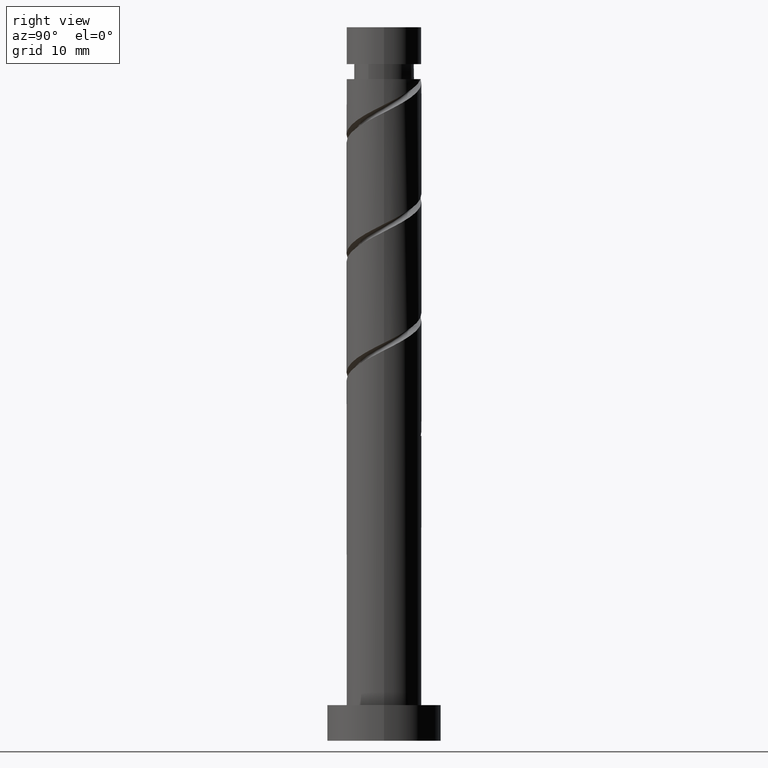
[diagram: clean part render]
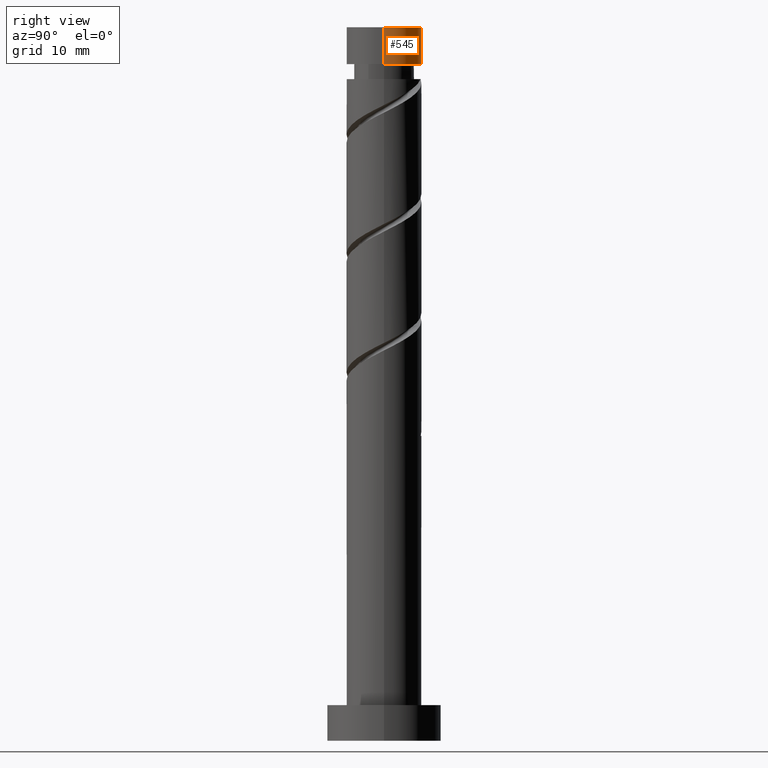
[diagram: same view with one face highlighted and labeled with its STEP entity id]
A machine part, right view. The second image highlights one B-rep face of the part: STEP entity #545.
In plain terms, the highlighted cylindrical surface (partial cylindrical patch) has radius 5.25 mm, axis along (-0, -0, -1).
Its self-contained STEP definition (entity closure, byte-faithful):
#2 = AXIS2_PLACEMENT_3D ( 'NONE', #1443, #1118, #293 ) ;
#56 = DIRECTION ( 'NONE',  ( -0.000000000000000000, -0.000000000000000000, -1.000000000000000000 ) ) ;
#78 = CYLINDRICAL_SURFACE ( 'NONE', #2, 5.250000000000000000 ) ;
#94 = EDGE_CURVE ( 'NONE', #398, #102, #1475, .T. ) ;
#102 = VERTEX_POINT ( 'NONE', #786 ) ;
#155 = LINE ( 'NONE', #1061, #435 ) ;
#225 = DIRECTION ( 'NONE',  ( 0.000000000000000000, 0.000000000000000000, 1.000000000000000000 ) ) ;
#273 = VERTEX_POINT ( 'NONE', #511 ) ;
#293 = DIRECTION ( 'NONE',  ( -1.000000000000000000, 0.000000000000000000, 0.000000000000000000 ) ) ;
#321 = ORIENTED_EDGE ( 'NONE', *, *, #94, .F. ) ;
#329 = VERTEX_POINT ( 'NONE', #1072 ) ;
#398 = VERTEX_POINT ( 'NONE', #1224 ) ;
#435 = VECTOR ( 'NONE', #56, 1000.000000000000000 ) ;
#450 = DIRECTION ( 'NONE',  ( -0.000000000000000000, -0.000000000000000000, -1.000000000000000000 ) ) ;
#461 = CIRCLE ( 'NONE', #1298, 5.250000000000000000 ) ;
#511 = CARTESIAN_POINT ( 'NONE',  ( 5.250000000000000000, 6.429395695523604153E-16, 100.0000000000000000 ) ) ;
#522 = VECTOR ( 'NONE', #450, 1000.000000000000000 ) ;
#545 = ADVANCED_FACE ( 'NONE', ( #765 ), #78, .T. ) ;
#549 = ORIENTED_EDGE ( 'NONE', *, *, #730, .F. ) ;
#681 = CARTESIAN_POINT ( 'NONE',  ( -5.250000000000000000, 0.000000000000000000, 100.0000000000000000 ) ) ;
#730 = EDGE_CURVE ( 'NONE', #273, #398, #461, .T. ) ;
#765 = FACE_OUTER_BOUND ( 'NONE', #1483, .T. ) ;
#771 = DIRECTION ( 'NONE',  ( -0.000000000000000000, -0.000000000000000000, -1.000000000000000000 ) ) ;
#786 = CARTESIAN_POINT ( 'NONE',  ( -5.250000000000000888, 0.000000000000000000, 94.83483077298609487 ) ) ;
#798 = CARTESIAN_POINT ( 'NONE',  ( 0.000000000000000000, 0.000000000000000000, 100.0000000000000000 ) ) ;
#835 = AXIS2_PLACEMENT_3D ( 'NONE', #1350, #771, #1010 ) ;
#849 = EDGE_CURVE ( 'NONE', #273, #329, #155, .T. ) ;
#879 = DIRECTION ( 'NONE',  ( 1.000000000000000000, 0.000000000000000000, 0.000000000000000000 ) ) ;
#999 = CIRCLE ( 'NONE', #835, 5.250000000000000888 ) ;
#1010 = DIRECTION ( 'NONE',  ( -1.000000000000000000, 0.000000000000000000, 0.000000000000000000 ) ) ;
#1061 = CARTESIAN_POINT ( 'NONE',  ( 5.250000000000000000, 6.429395695523604153E-16, 100.0000000000000000 ) ) ;
#1072 = CARTESIAN_POINT ( 'NONE',  ( 5.250000000000000888, 6.429395695523605139E-16, 94.83483077298609487 ) ) ;
#1118 = DIRECTION ( 'NONE',  ( -0.000000000000000000, -0.000000000000000000, -1.000000000000000000 ) ) ;
#1222 = EDGE_CURVE ( 'NONE', #102, #329, #999, .T. ) ;
#1224 = CARTESIAN_POINT ( 'NONE',  ( -5.250000000000000000, 0.000000000000000000, 100.0000000000000000 ) ) ;
#1298 = AXIS2_PLACEMENT_3D ( 'NONE', #798, #225, #879 ) ;
#1347 = ORIENTED_EDGE ( 'NONE', *, *, #1222, .F. ) ;
#1350 = CARTESIAN_POINT ( 'NONE',  ( 0.000000000000000000, 0.000000000000000000, 94.83483077298609487 ) ) ;
#1443 = CARTESIAN_POINT ( 'NONE',  ( 0.000000000000000000, 0.000000000000000000, 100.0000000000000000 ) ) ;
#1453 = ORIENTED_EDGE ( 'NONE', *, *, #849, .T. ) ;
#1475 = LINE ( 'NONE', #681, #522 ) ;
#1483 = EDGE_LOOP ( 'NONE', ( #549, #1453, #1347, #321 ) ) ;